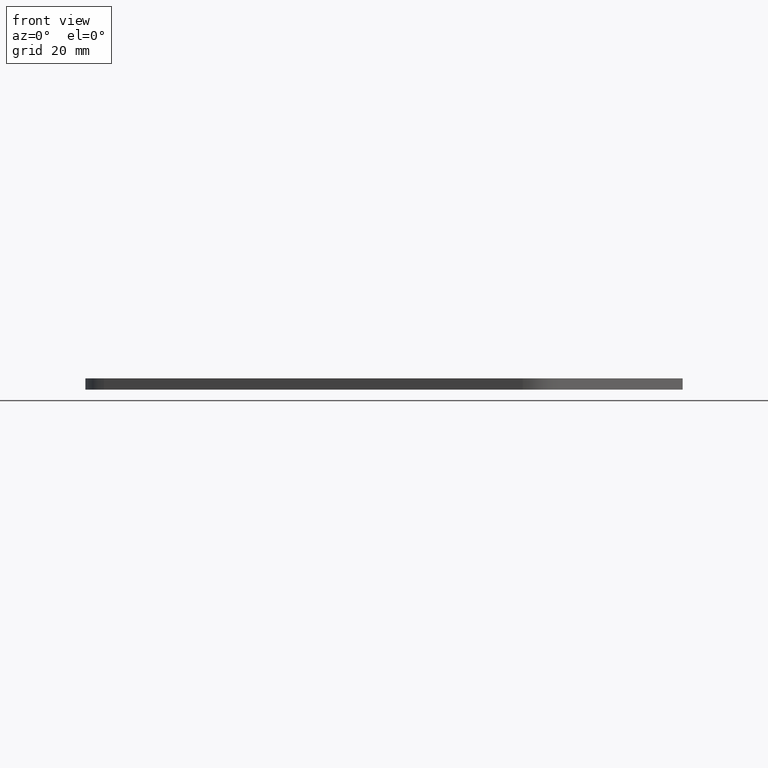
[diagram: clean part render]
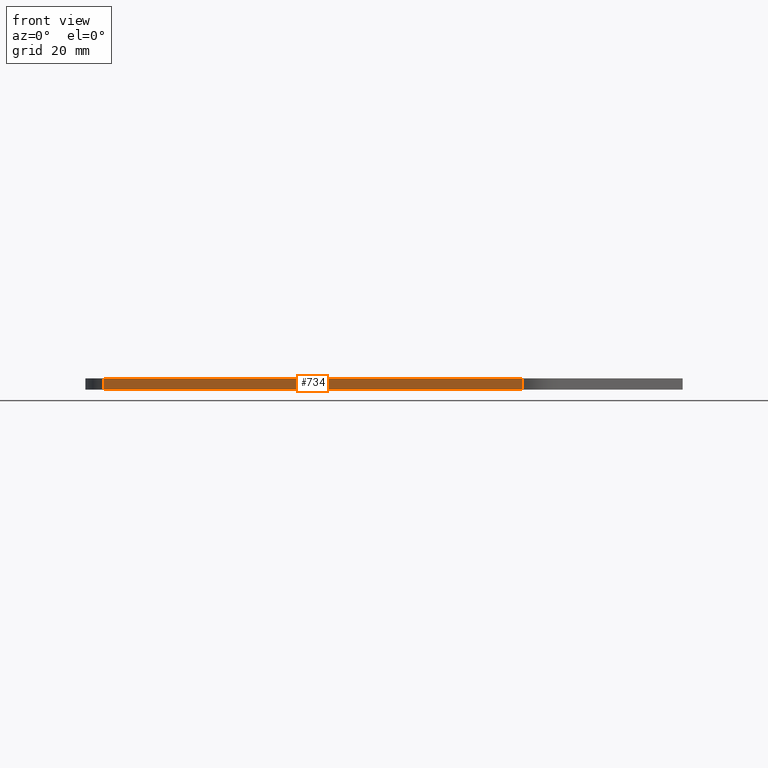
[diagram: same view with one face highlighted and labeled with its STEP entity id]
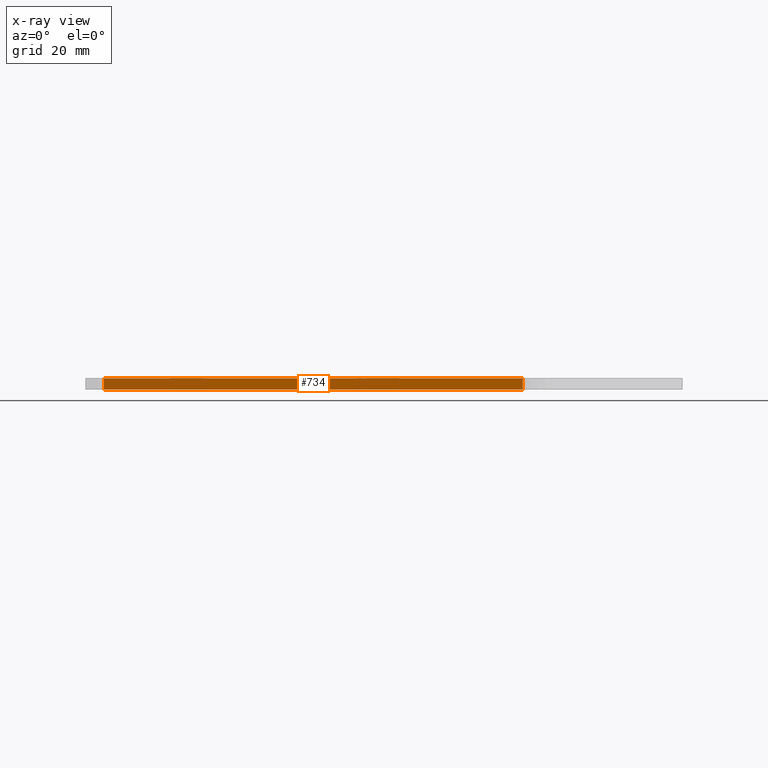
[diagram: x-ray of the same camera — body ghosted, the highlighted face saturated]
A machine part, front view. The second image highlights one B-rep face of the part: STEP entity #734.
The next image is the same camera in x-ray: the body ghosted, the highlighted face saturated — about 0% of this face is hidden behind the body in this view.
In plain terms, the highlighted planar face has unit normal (-0.5, -0.866, 0).
Its self-contained STEP definition (entity closure, byte-faithful):
#21 = VERTEX_POINT ( 'NONE', #560 ) ;
#125 = DIRECTION ( 'NONE',  ( -0.000000000000000000, -0.000000000000000000, -1.000000000000000000 ) ) ;
#169 = DIRECTION ( 'NONE',  ( -0.4999999999999995004, -0.8660254037844389297, 0.000000000000000000 ) ) ;
#190 = LINE ( 'NONE', #206, #1394 ) ;
#206 = CARTESIAN_POINT ( 'NONE',  ( 525.0000000000000000, 1050.200139638875044, 1257.499999999999545 ) ) ;
#284 = CARTESIAN_POINT ( 'NONE',  ( 641.9999992780285538, 982.6501585605194578, 1257.499999999999545 ) ) ;
#291 = CARTESIAN_POINT ( 'NONE',  ( 525.0000000000000000, 1050.200139638875044, 1260.499999999999545 ) ) ;
#303 = EDGE_CURVE ( 'NONE', #680, #1053, #1216, .T. ) ;
#330 = DIRECTION ( 'NONE',  ( -0.000000000000000000, -0.000000000000000000, -1.000000000000000000 ) ) ;
#397 = EDGE_CURVE ( 'NONE', #21, #736, #1354, .T. ) ;
#443 = CARTESIAN_POINT ( 'NONE',  ( 530.0000000000000000, 1047.313388292927129, 1257.499999999999545 ) ) ;
#473 = ORIENTED_EDGE ( 'NONE', *, *, #397, .F. ) ;
#560 = CARTESIAN_POINT ( 'NONE',  ( 641.9999992780285538, 982.6501585605194578, 1260.499999999999545 ) ) ;
#579 = ORIENTED_EDGE ( 'NONE', *, *, #969, .T. ) ;
#635 = VECTOR ( 'NONE', #925, 1000.000000000000000 ) ;
#643 = CARTESIAN_POINT ( 'NONE',  ( 530.0000000000000000, 1047.313388292927129, 1260.499999999999545 ) ) ;
#680 = VERTEX_POINT ( 'NONE', #643 ) ;
#734 = ADVANCED_FACE ( 'NONE', ( #1310 ), #1384, .T. ) ;
#736 = VERTEX_POINT ( 'NONE', #284 ) ;
#820 = VECTOR ( 'NONE', #125, 1000.000000000000000 ) ;
#918 = LINE ( 'NONE', #291, #635 ) ;
#925 = DIRECTION ( 'NONE',  ( 0.8660254037844389297, -0.4999999999999995004, 0.000000000000000000 ) ) ;
#935 = ORIENTED_EDGE ( 'NONE', *, *, #1275, .F. ) ;
#969 = EDGE_CURVE ( 'NONE', #1053, #736, #190, .T. ) ;
#997 = CARTESIAN_POINT ( 'NONE',  ( 641.9999992780285538, 982.6501585605194578, 1257.499999999999545 ) ) ;
#1050 = AXIS2_PLACEMENT_3D ( 'NONE', #1388, #169, #1263 ) ;
#1053 = VERTEX_POINT ( 'NONE', #1058 ) ;
#1058 = CARTESIAN_POINT ( 'NONE',  ( 530.0000000000000000, 1047.313388292927129, 1257.499999999999545 ) ) ;
#1159 = EDGE_LOOP ( 'NONE', ( #473, #935, #1285, #579 ) ) ;
#1215 = VECTOR ( 'NONE', #330, 1000.000000000000000 ) ;
#1216 = LINE ( 'NONE', #443, #1215 ) ;
#1263 = DIRECTION ( 'NONE',  ( 0.8660254037844389297, -0.4999999999999995004, 0.000000000000000000 ) ) ;
#1275 = EDGE_CURVE ( 'NONE', #680, #21, #918, .T. ) ;
#1285 = ORIENTED_EDGE ( 'NONE', *, *, #303, .T. ) ;
#1310 = FACE_OUTER_BOUND ( 'NONE', #1159, .T. ) ;
#1354 = LINE ( 'NONE', #997, #820 ) ;
#1384 = PLANE ( 'NONE',  #1050 ) ;
#1388 = CARTESIAN_POINT ( 'NONE',  ( 525.0000000000000000, 1050.200139638875044, 1257.499999999999545 ) ) ;
#1394 = VECTOR ( 'NONE', #1414, 1000.000000000000000 ) ;
#1414 = DIRECTION ( 'NONE',  ( 0.8660254037844389297, -0.4999999999999995004, 0.000000000000000000 ) ) ;